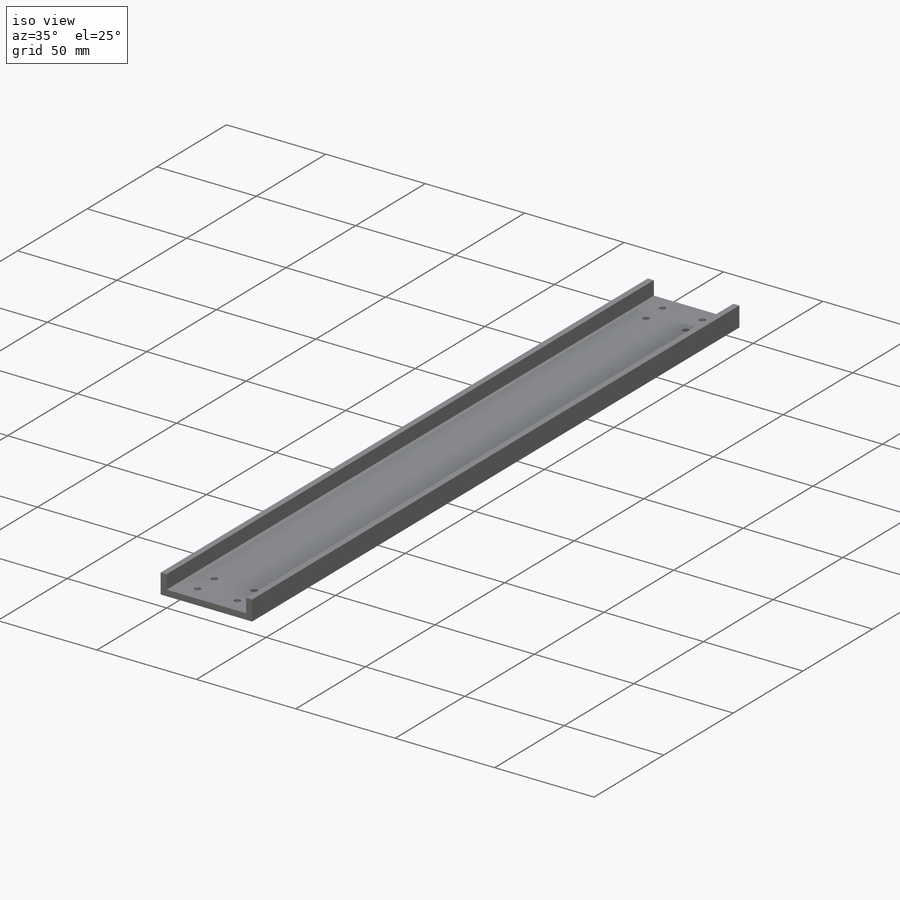
[diagram: iso view]
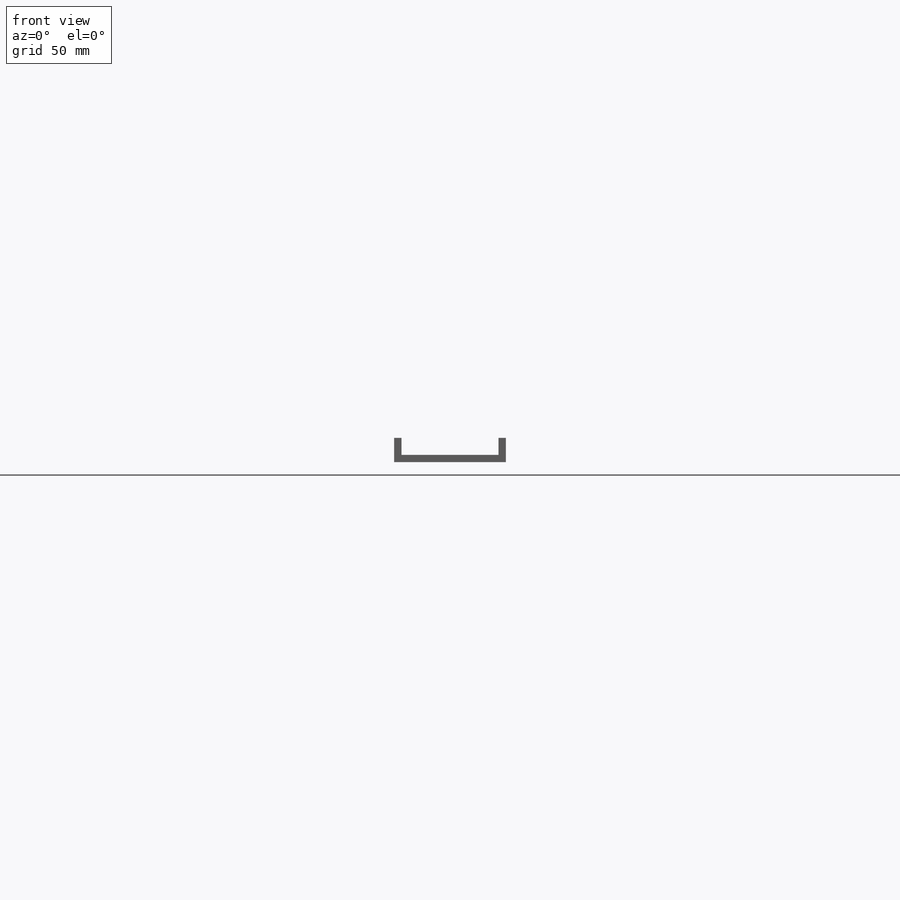
[diagram: front view]
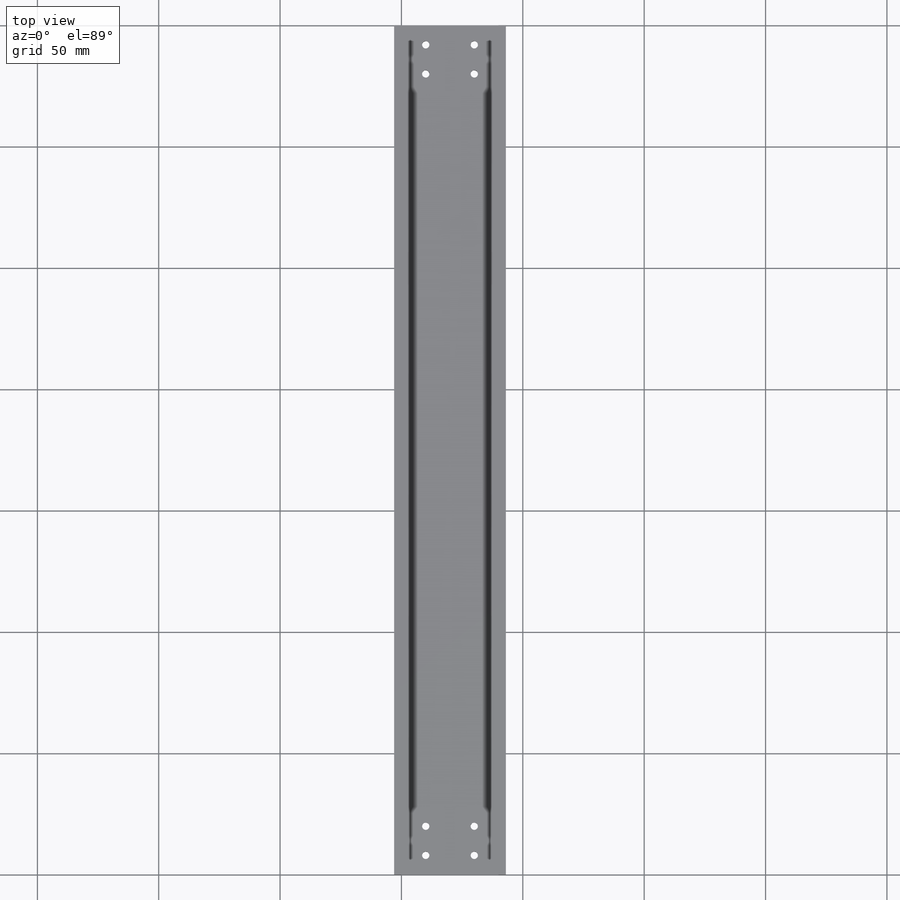
[diagram: top view]
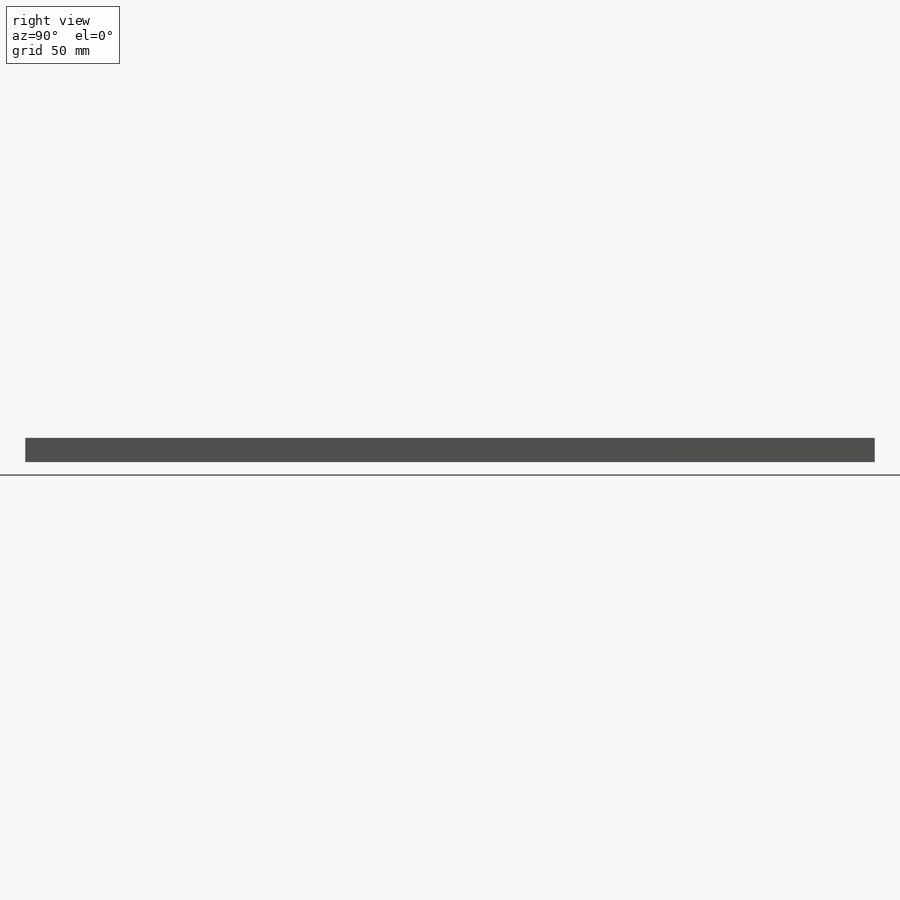
[diagram: right view]
SOLIDWORKS PART (.sldprt)
format: sldprt  version: not decoded by parser v0  size: 191,488 bytes
history: native  units: mm
features: sketch x5, material x1, extrude x1, hole x1, plane x1, mirror x1 (+12 scaffold rows collapsed)
feature tree (22):
  scaffold x12  (default folders/planes/origin — collapsed)
  material  "Material <not specified>"
  sketch  "Sketch2"  dims[D1=3.0mm D2=3.0mm D3=3.0mm D4=10.0mm D5=40.0mm]
  extrude  "Boss-Extrude1"  Depth=350mm
  hole  "Ø3.0mm Dowel Hole1"  Diameter=3mm Depth=15mm
  sketch  "Sketch4"  dims[D1=20.0mm D2=13.0mm D3=8.0mm D4=12.0mm]
  sketch  "Sketch3"  dims[hole-wizard template sketch: 50 standard entries collapsed; hole parameters above]
  sketch  "Sketch5"  dims[D1=~19.590473mm]
  sketch  "Sketch7"  dims[D1=~60.614536mm]
  plane  "Plane1"
  mirror  "Mirror1"
decode coverage: 7 of 8 modeling features carry decoded parameters
note: ~ marks probable driven/reference dimensions
note: suppression state not decoded; provenance and decode notes live in map.json
